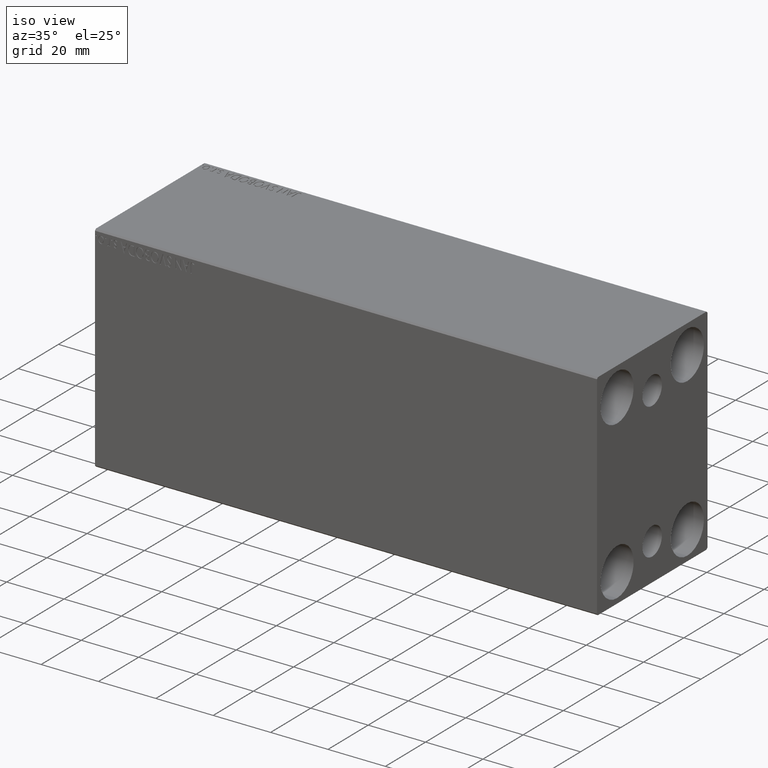
[diagram: clean part render]
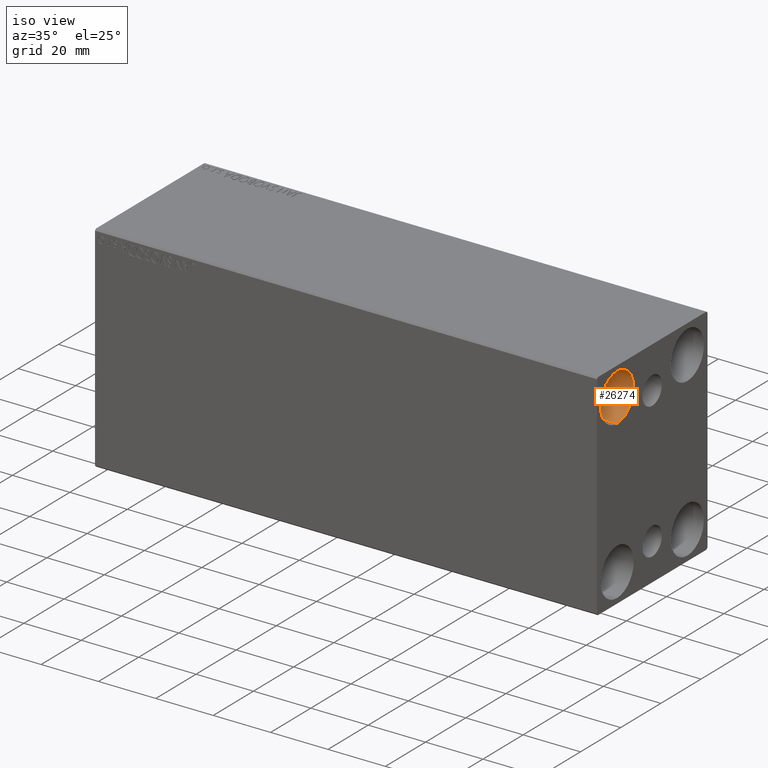
[diagram: same view with one face highlighted and labeled with its STEP entity id]
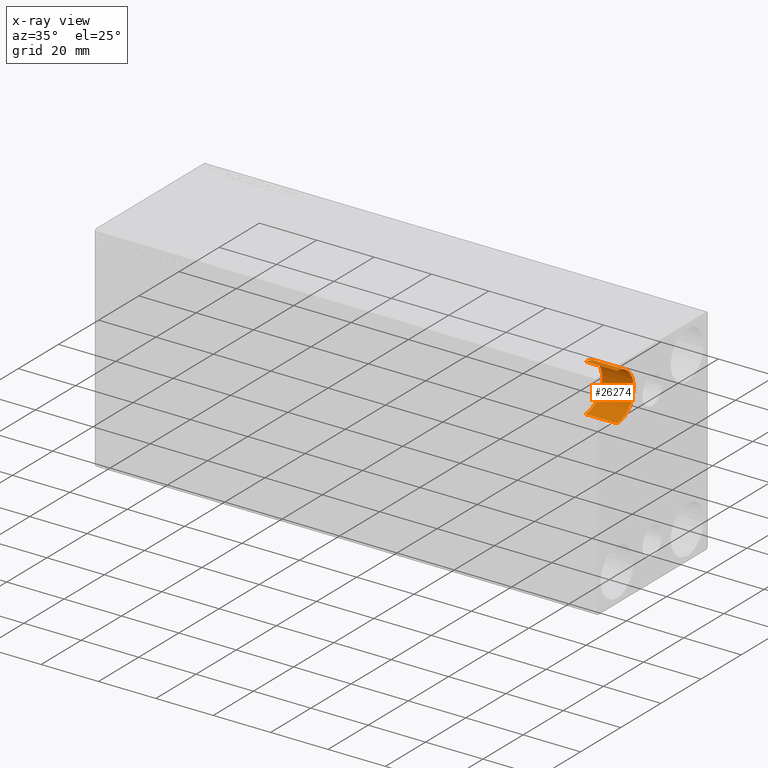
[diagram: x-ray of the same camera — body ghosted, the highlighted face saturated]
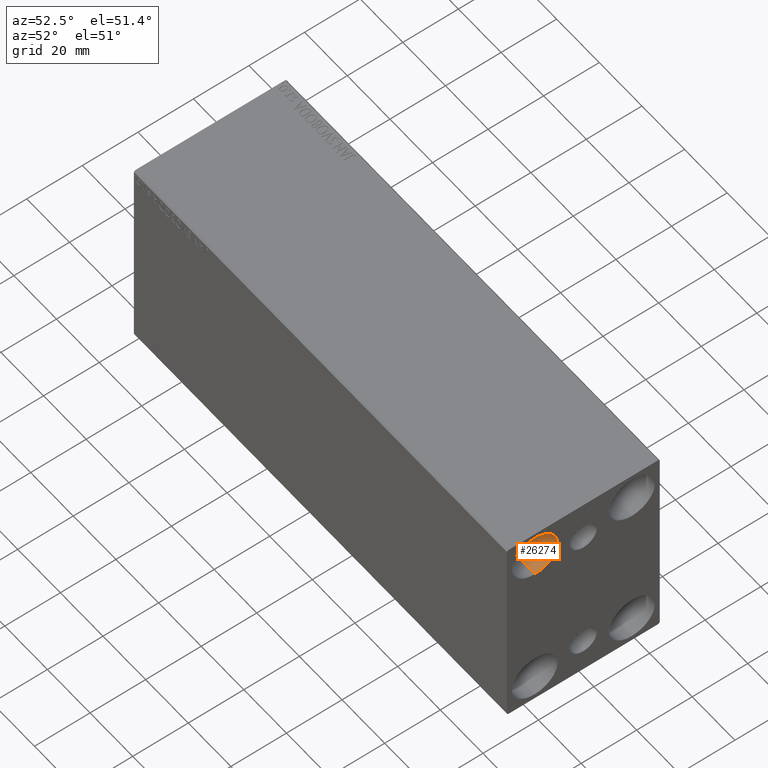
[diagram: same view with one face highlighted and labeled with its STEP entity id]
A machine part, iso view. The second image highlights one B-rep face of the part: STEP entity #26274.
The next image is the same camera in x-ray: the body ghosted, the highlighted face saturated — about 0% of this face is hidden behind the body in this view.
A second angle (auxiliary view) of the same face is appended — the face is thin or edge-on in the first view.
In plain terms, the highlighted cylindrical surface (edge-blend (fillet) strip) has radius 8.25 mm, axis along (1, 0, 0).
Its self-contained STEP definition (entity closure, byte-faithful):
#1862 = CARTESIAN_POINT ( 'NONE',  ( 163.9999999999999716, -17.49999999999999645, 27.49999999999999645 ) ) ;
#1912 = DIRECTION ( 'NONE',  ( 1.000000000000000000, -0.000000000000000000, -0.000000000000000000 ) ) ;
#2030 = CARTESIAN_POINT ( 'NONE',  ( 175.0000000000000000, -17.49999999999999645, 27.49999999999999645 ) ) ;
#3387 = ORIENTED_EDGE ( 'NONE', *, *, #33747, .T. ) ;
#5230 = CYLINDRICAL_SURFACE ( 'NONE', #38345, 8.249999999999996447 ) ;
#5392 = DIRECTION ( 'NONE',  ( 0.000000000000000000, 0.000000000000000000, 1.000000000000000000 ) ) ;
#5442 = LINE ( 'NONE', #32346, #30841 ) ;
#7560 = CIRCLE ( 'NONE', #32187, 8.249999999999992895 ) ;
#8192 = VERTEX_POINT ( 'NONE', #40150 ) ;
#8344 = CARTESIAN_POINT ( 'NONE',  ( 163.9999999999999716, -17.49999999999999645, 35.74999999999999289 ) ) ;
#9629 = CIRCLE ( 'NONE', #23711, 8.249999999999992895 ) ;
#11526 = DIRECTION ( 'NONE',  ( -1.000000000000000000, -0.000000000000000000, -0.000000000000000000 ) ) ;
#11633 = CARTESIAN_POINT ( 'NONE',  ( 163.9999999999999716, -17.49999999999999645, 27.49999999999999645 ) ) ;
#14586 = EDGE_CURVE ( 'NONE', #19537, #25725, #23038, .T. ) ;
#17493 = CARTESIAN_POINT ( 'NONE',  ( 175.0000000000000000, -17.49999999999999645, 35.74999999999999289 ) ) ;
#18667 = FACE_OUTER_BOUND ( 'NONE', #26989, .T. ) ;
#19537 = VERTEX_POINT ( 'NONE', #8344 ) ;
#21068 = VERTEX_POINT ( 'NONE', #30799 ) ;
#21442 = ORIENTED_EDGE ( 'NONE', *, *, #14586, .F. ) ;
#21763 = DIRECTION ( 'NONE',  ( 0.000000000000000000, 0.000000000000000000, -1.000000000000000000 ) ) ;
#22032 = VECTOR ( 'NONE', #29220, 1000.000000000000000 ) ;
#22802 = ORIENTED_EDGE ( 'NONE', *, *, #35974, .T. ) ;
#23038 = LINE ( 'NONE', #29438, #22032 ) ;
#23711 = AXIS2_PLACEMENT_3D ( 'NONE', #1862, #25026, #5392 ) ;
#25026 = DIRECTION ( 'NONE',  ( -1.000000000000000000, -0.000000000000000000, -0.000000000000000000 ) ) ;
#25615 = DIRECTION ( 'NONE',  ( 0.000000000000000000, 0.000000000000000000, 1.000000000000000000 ) ) ;
#25725 = VERTEX_POINT ( 'NONE', #17493 ) ;
#26274 = ADVANCED_FACE ( 'NONE', ( #18667 ), #5230, .F. ) ;
#26989 = EDGE_LOOP ( 'NONE', ( #21442, #3387, #22802, #38190 ) ) ;
#29220 = DIRECTION ( 'NONE',  ( 1.000000000000000000, -0.000000000000000000, -0.000000000000000000 ) ) ;
#29438 = CARTESIAN_POINT ( 'NONE',  ( 163.9999999999999716, -17.49999999999999645, 35.74999999999999289 ) ) ;
#30799 = CARTESIAN_POINT ( 'NONE',  ( 175.0000000000000000, -17.49999999999999645, 19.25000000000000000 ) ) ;
#30841 = VECTOR ( 'NONE', #42466, 1000.000000000000000 ) ;
#32187 = AXIS2_PLACEMENT_3D ( 'NONE', #2030, #11526, #25615 ) ;
#32346 = CARTESIAN_POINT ( 'NONE',  ( 163.9999999999999716, -17.49999999999999645, 19.25000000000000000 ) ) ;
#33747 = EDGE_CURVE ( 'NONE', #19537, #8192, #9629, .T. ) ;
#35321 = EDGE_CURVE ( 'NONE', #25725, #21068, #7560, .T. ) ;
#35974 = EDGE_CURVE ( 'NONE', #8192, #21068, #5442, .T. ) ;
#38190 = ORIENTED_EDGE ( 'NONE', *, *, #35321, .F. ) ;
#38345 = AXIS2_PLACEMENT_3D ( 'NONE', #11633, #1912, #21763 ) ;
#40150 = CARTESIAN_POINT ( 'NONE',  ( 163.9999999999999716, -17.49999999999999645, 19.25000000000000000 ) ) ;
#42466 = DIRECTION ( 'NONE',  ( 1.000000000000000000, -0.000000000000000000, -0.000000000000000000 ) ) ;